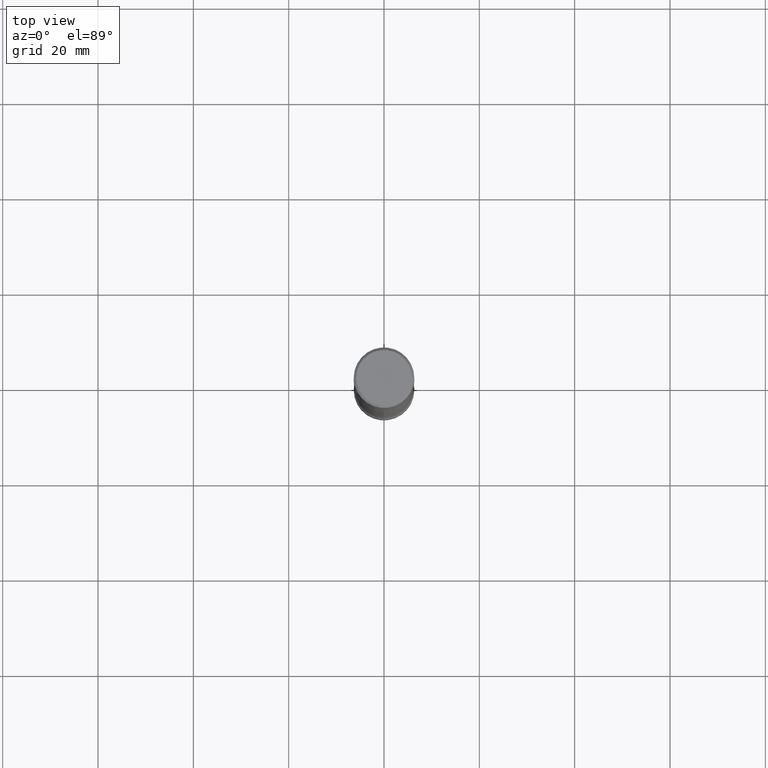
[diagram: clean part render]
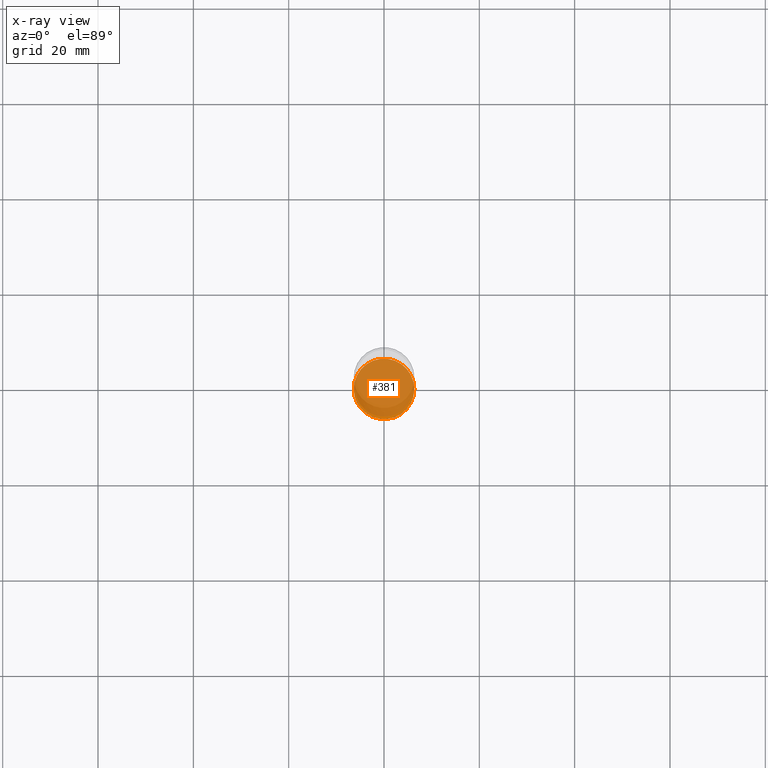
[diagram: x-ray — body ghosted, one internal face saturated and labeled with its STEP entity id]
A machine part, top view, then the same camera in x-ray: the body is ghosted and one INTERNAL B-rep face — a face not visible from any outside direction — is saturated and labeled: STEP entity #381.
In plain terms, the highlighted planar face has unit normal (0, -0, -1).
Its self-contained STEP definition (entity closure, byte-faithful):
#31 = VERTEX_POINT ( 'NONE', #221 ) ;
#41 = EDGE_CURVE ( 'NONE', #158, #31, #453, .T. ) ;
#81 = CIRCLE ( 'NONE', #430, 0.2500000000000002776 ) ;
#124 = ORIENTED_EDGE ( 'NONE', *, *, #257, .T. ) ;
#125 = DIRECTION ( 'NONE',  ( 2.438088387897960049E-29, -3.491481338843145188E-15, -1.000000000000000000 ) ) ;
#133 = CARTESIAN_POINT ( 'NONE',  ( 1.314439483324511369E-28, -1.876671219628191278E-14, -5.375000000000001776 ) ) ;
#158 = VERTEX_POINT ( 'NONE', #392 ) ;
#161 = CARTESIAN_POINT ( 'NONE',  ( 1.314439483324511369E-28, -1.876671219628191278E-14, -5.375000000000001776 ) ) ;
#170 = AXIS2_PLACEMENT_3D ( 'NONE', #133, #310, #485 ) ;
#214 = CARTESIAN_POINT ( 'NONE',  ( -3.261302786302777691E-29, -4.226060494179454767E-14, -5.375000000000000888 ) ) ;
#220 = PLANE ( 'NONE',  #454 ) ;
#221 = CARTESIAN_POINT ( 'NONE',  ( 0.2500000000000002776, -2.051245286570348262E-14, -5.375000000000001776 ) ) ;
#257 = EDGE_CURVE ( 'NONE', #31, #158, #81, .T. ) ;
#289 = ORIENTED_EDGE ( 'NONE', *, *, #41, .T. ) ;
#310 = DIRECTION ( 'NONE',  ( -2.445468806185136597E-29, 3.491481338843145583E-15, 1.000000000000000000 ) ) ;
#324 = DIRECTION ( 'NONE',  ( 1.000000000000000000, -6.982962677686270655E-15, 0.000000000000000000 ) ) ;
#345 = EDGE_LOOP ( 'NONE', ( #124, #289 ) ) ;
#347 = DIRECTION ( 'NONE',  ( -1.000000000000000000, 6.982962677686265922E-15, -4.876176775795935793E-29 ) ) ;
#361 = DIRECTION ( 'NONE',  ( -2.445468806185136597E-29, 3.491481338843145583E-15, 1.000000000000000000 ) ) ;
#381 = ADVANCED_FACE ( 'NONE', ( #437 ), #220, .F. ) ;
#392 = CARTESIAN_POINT ( 'NONE',  ( -0.2500000000000002776, -1.792432661502220065E-14, -5.375000000000001776 ) ) ;
#430 = AXIS2_PLACEMENT_3D ( 'NONE', #161, #361, #324 ) ;
#437 = FACE_OUTER_BOUND ( 'NONE', #345, .T. ) ;
#453 = CIRCLE ( 'NONE', #170, 0.2500000000000002776 ) ;
#454 = AXIS2_PLACEMENT_3D ( 'NONE', #214, #125, #347 ) ;
#485 = DIRECTION ( 'NONE',  ( 1.000000000000000000, -6.982962677686270655E-15, 0.000000000000000000 ) ) ;